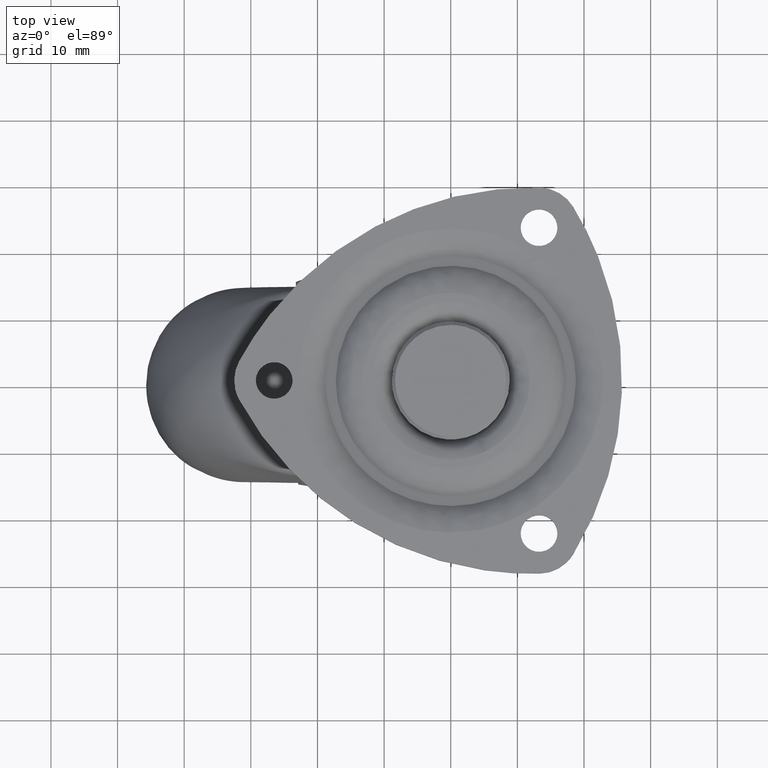
[diagram: clean part render]
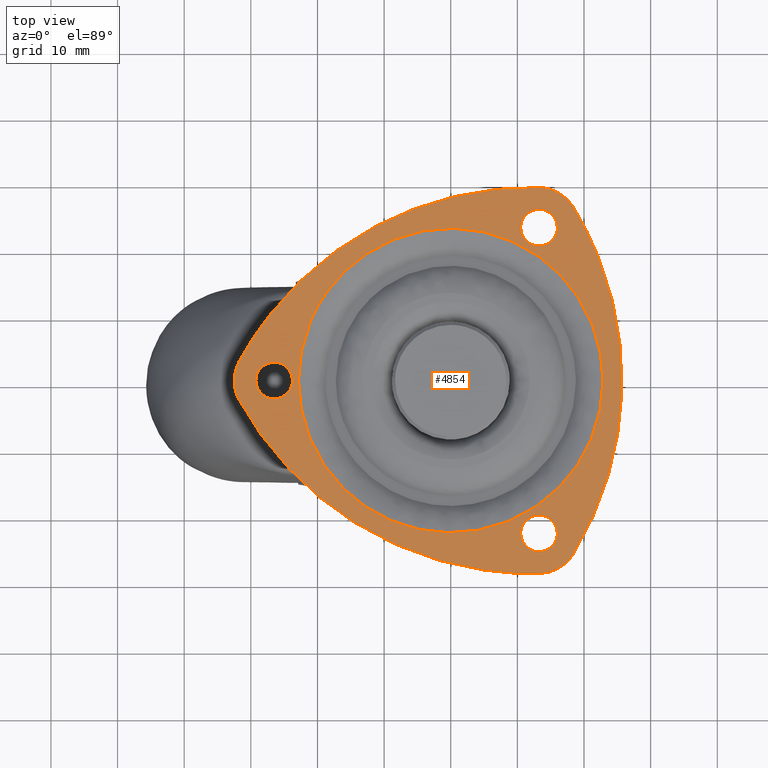
[diagram: same view with one face highlighted and labeled with its STEP entity id]
A machine part, top view. The second image highlights one B-rep face of the part: STEP entity #4854.
In plain terms, the highlighted face is a freeform B-spline surface patch.
Its self-contained STEP definition (entity closure, byte-faithful):
#3066=CARTESIAN_POINT('',(-26.824594145320749,-2.730776197498341,1.277743E-016));
#3067=VERTEX_POINT('',#3066);
#3068=CARTESIAN_POINT('',(-23.750000000000000,0.0,0.0));
#3069=VERTEX_POINT('',#3068);
#3070=CARTESIAN_POINT('',(-26.824594145320745,-2.730776197498340,1.277743E-016));
#3071=CARTESIAN_POINT('',(-26.662866329057564,-2.750000000000000,0.0));
#3072=CARTESIAN_POINT('',(-26.500000000000000,-2.750000000000000,0.0));
#3073=CARTESIAN_POINT('',(-23.750000000000011,-2.750000000000000,0.0));
#3074=CARTESIAN_POINT('',(-23.750000000000000,0.0,0.0));
#3082=(BOUNDED_CURVE()B_SPLINE_CURVE(2,(#3070,#3071,#3072,#3073,#3074),.UNSPECIFIED.,.F.,.U.)B_SPLINE_CURVE_WITH_KNOTS((3,2,3),(0.229562473513830,0.250000000000000,0.500000000000000),.UNSPECIFIED.)CURVE()GEOMETRIC_REPRESENTATION_ITEM()RATIONAL_B_SPLINE_CURVE((0.956026754184330,0.976055948331522,1.0,0.707106781186548,1.0))REPRESENTATION_ITEM(''));
#3083=EDGE_CURVE('',#3067,#3069,#3082,.T.);
#3085=CARTESIAN_POINT('',(-26.332116516199349,2.744870695655254,1.249001E-016));
#3086=VERTEX_POINT('',#3085);
#3087=CARTESIAN_POINT('',(-23.750000000000000,0.0,0.0));
#3088=CARTESIAN_POINT('',(-23.750000000000004,2.586941683839990,0.0));
#3089=CARTESIAN_POINT('',(-26.332116516199349,2.744870695655254,1.249001E-016));
#3097=(BOUNDED_CURVE()B_SPLINE_CURVE(2,(#3087,#3088,#3089),.UNSPECIFIED.,.F.,.U.)B_SPLINE_CURVE_WITH_KNOTS((3,3),(0.500000000000000,0.739332962231937),.UNSPECIFIED.)CURVE()GEOMETRIC_REPRESENTATION_ITEM()RATIONAL_B_SPLINE_CURVE((1.0,0.719603993294918,0.976072041651703))REPRESENTATION_ITEM(''));
#3098=EDGE_CURVE('',#3069,#3086,#3097,.T.);
#3165=CARTESIAN_POINT('',(-29.250000000000000,0.0,0.0));
#3166=VERTEX_POINT('',#3165);
#3167=CARTESIAN_POINT('',(-29.250000000000000,0.0,0.0));
#3168=CARTESIAN_POINT('',(-29.249999999999993,-2.442479946339859,0.0));
#3169=CARTESIAN_POINT('',(-26.824594145320745,-2.730776197498340,1.277743E-016));
#3177=(BOUNDED_CURVE()B_SPLINE_CURVE(2,(#3167,#3168,#3169),.UNSPECIFIED.,.F.,.U.)B_SPLINE_CURVE_WITH_KNOTS((3,3),(0.0,0.229562473513830),.UNSPECIFIED.)CURVE()GEOMETRIC_REPRESENTATION_ITEM()RATIONAL_B_SPLINE_CURVE((1.0,0.731050832855025,0.956026754184330))REPRESENTATION_ITEM(''));
#3178=EDGE_CURVE('',#3166,#3067,#3177,.T.);
#3212=CARTESIAN_POINT('',(-26.332116516199353,2.744870695655254,1.249001E-016));
#3213=CARTESIAN_POINT('',(-26.415979900848864,2.750000000000000,0.0));
#3214=CARTESIAN_POINT('',(-26.500000000000000,2.750000000000000,0.0));
#3215=CARTESIAN_POINT('',(-29.250000000000004,2.750000000000000,0.0));
#3216=CARTESIAN_POINT('',(-29.250000000000000,0.0,0.0));
#3224=(BOUNDED_CURVE()B_SPLINE_CURVE(2,(#3212,#3213,#3214,#3215,#3216),.UNSPECIFIED.,.F.,.U.)B_SPLINE_CURVE_WITH_KNOTS((3,2,3),(0.739332962231937,0.750000000000000,1.0),.UNSPECIFIED.)CURVE()GEOMETRIC_REPRESENTATION_ITEM()RATIONAL_B_SPLINE_CURVE((0.976072041651702,0.987502787891629,1.0,0.707106781186548,1.0))REPRESENTATION_ITEM(''));
#3225=EDGE_CURVE('',#3086,#3166,#3224,.T.);
#3252=CARTESIAN_POINT('',(12.925405854679260,20.218897802501662,1.277743E-016));
#3253=VERTEX_POINT('',#3252);
#3254=CARTESIAN_POINT('',(16.0,22.949674000000002,0.0));
#3255=VERTEX_POINT('',#3254);
#3256=CARTESIAN_POINT('',(12.925405854679255,20.218897802501662,1.277743E-016));
#3257=CARTESIAN_POINT('',(13.087133670942436,20.199674000000002,0.0));
#3258=CARTESIAN_POINT('',(13.250000000000000,20.199674000000002,0.0));
#3259=CARTESIAN_POINT('',(15.999999999999998,20.199674000000009,0.0));
#3260=CARTESIAN_POINT('',(16.0,22.949674000000002,0.0));
#3268=(BOUNDED_CURVE()B_SPLINE_CURVE(2,(#3256,#3257,#3258,#3259,#3260),.UNSPECIFIED.,.F.,.U.)B_SPLINE_CURVE_WITH_KNOTS((3,2,3),(0.229562473513830,0.250000000000000,0.500000000000000),.UNSPECIFIED.)CURVE()GEOMETRIC_REPRESENTATION_ITEM()RATIONAL_B_SPLINE_CURVE((0.956026754184330,0.976055948331522,1.0,0.707106781186548,1.0))REPRESENTATION_ITEM(''));
#3269=EDGE_CURVE('',#3253,#3255,#3268,.T.);
#3271=CARTESIAN_POINT('',(13.417883483800651,25.694544695655249,1.249001E-016));
#3272=VERTEX_POINT('',#3271);
#3273=CARTESIAN_POINT('',(16.0,22.949674000000002,0.0));
#3274=CARTESIAN_POINT('',(15.999999999999995,25.536615683839983,0.0));
#3275=CARTESIAN_POINT('',(13.417883483800647,25.694544695655253,1.249001E-016));
#3283=(BOUNDED_CURVE()B_SPLINE_CURVE(2,(#3273,#3274,#3275),.UNSPECIFIED.,.F.,.U.)B_SPLINE_CURVE_WITH_KNOTS((3,3),(0.500000000000000,0.739332962231937),.UNSPECIFIED.)CURVE()GEOMETRIC_REPRESENTATION_ITEM()RATIONAL_B_SPLINE_CURVE((1.0,0.719603993294918,0.976072041651703))REPRESENTATION_ITEM(''));
#3284=EDGE_CURVE('',#3255,#3272,#3283,.T.);
#3351=CARTESIAN_POINT('',(10.500000000000000,22.949674000000002,0.0));
#3352=VERTEX_POINT('',#3351);
#3353=CARTESIAN_POINT('',(10.500000000000000,22.949674000000002,0.0));
#3354=CARTESIAN_POINT('',(10.499999999999998,20.507194053660132,0.0));
#3355=CARTESIAN_POINT('',(12.925405854679251,20.218897802501658,1.277743E-016));
#3363=(BOUNDED_CURVE()B_SPLINE_CURVE(2,(#3353,#3354,#3355),.UNSPECIFIED.,.F.,.U.)B_SPLINE_CURVE_WITH_KNOTS((3,3),(0.0,0.229562473513830),.UNSPECIFIED.)CURVE()GEOMETRIC_REPRESENTATION_ITEM()RATIONAL_B_SPLINE_CURVE((1.0,0.731050832855026,0.956026754184330))REPRESENTATION_ITEM(''));
#3364=EDGE_CURVE('',#3352,#3253,#3363,.T.);
#3398=CARTESIAN_POINT('',(13.417883483800649,25.694544695655253,1.249001E-016));
#3399=CARTESIAN_POINT('',(13.334020099151134,25.699673999999998,0.0));
#3400=CARTESIAN_POINT('',(13.250000000000000,25.699674000000002,0.0));
#3401=CARTESIAN_POINT('',(10.499999999999998,25.699673999999991,0.0));
#3402=CARTESIAN_POINT('',(10.500000000000000,22.949674000000002,0.0));
#3410=(BOUNDED_CURVE()B_SPLINE_CURVE(2,(#3398,#3399,#3400,#3401,#3402),.UNSPECIFIED.,.F.,.U.)B_SPLINE_CURVE_WITH_KNOTS((3,2,3),(0.739332962231937,0.750000000000000,1.0),.UNSPECIFIED.)CURVE()GEOMETRIC_REPRESENTATION_ITEM()RATIONAL_B_SPLINE_CURVE((0.976072041651702,0.987502787891629,1.0,0.707106781186548,1.0))REPRESENTATION_ITEM(''));
#3411=EDGE_CURVE('',#3272,#3352,#3410,.T.);
#3438=CARTESIAN_POINT('',(12.925405854679260,-25.680449197498440,1.277743E-016));
#3439=VERTEX_POINT('',#3438);
#3440=CARTESIAN_POINT('',(16.0,-22.949673000000100,0.0));
#3441=VERTEX_POINT('',#3440);
#3442=CARTESIAN_POINT('',(12.925405854679260,-25.680449197498444,1.277743E-016));
#3443=CARTESIAN_POINT('',(13.087133670942434,-25.699673000000100,0.0));
#3444=CARTESIAN_POINT('',(13.250000000000000,-25.699673000000100,0.0));
#3445=CARTESIAN_POINT('',(15.999999999999998,-25.699673000000107,0.0));
#3446=CARTESIAN_POINT('',(16.0,-22.949673000000100,0.0));
#3454=(BOUNDED_CURVE()B_SPLINE_CURVE(2,(#3442,#3443,#3444,#3445,#3446),.UNSPECIFIED.,.F.,.U.)B_SPLINE_CURVE_WITH_KNOTS((3,2,3),(0.229562473513830,0.250000000000000,0.500000000000000),.UNSPECIFIED.)CURVE()GEOMETRIC_REPRESENTATION_ITEM()RATIONAL_B_SPLINE_CURVE((0.956026754184330,0.976055948331522,1.0,0.707106781186548,1.0))REPRESENTATION_ITEM(''));
#3455=EDGE_CURVE('',#3439,#3441,#3454,.T.);
#3457=CARTESIAN_POINT('',(13.417883483800651,-20.204802304344849,1.249001E-016));
#3458=VERTEX_POINT('',#3457);
#3459=CARTESIAN_POINT('',(16.0,-22.949673000000100,0.0));
#3460=CARTESIAN_POINT('',(15.999999999999995,-20.362731316160108,0.0));
#3461=CARTESIAN_POINT('',(13.417883483800647,-20.204802304344849,1.249001E-016));
#3469=(BOUNDED_CURVE()B_SPLINE_CURVE(2,(#3459,#3460,#3461),.UNSPECIFIED.,.F.,.U.)B_SPLINE_CURVE_WITH_KNOTS((3,3),(0.500000000000000,0.739332962231937),.UNSPECIFIED.)CURVE()GEOMETRIC_REPRESENTATION_ITEM()RATIONAL_B_SPLINE_CURVE((1.0,0.719603993294918,0.976072041651703))REPRESENTATION_ITEM(''));
#3470=EDGE_CURVE('',#3441,#3458,#3469,.T.);
#3537=CARTESIAN_POINT('',(10.500000000000000,-22.949673000000100,0.0));
#3538=VERTEX_POINT('',#3537);
#3539=CARTESIAN_POINT('',(10.500000000000000,-22.949673000000100,0.0));
#3540=CARTESIAN_POINT('',(10.500000000000000,-25.392152946339962,0.0));
#3541=CARTESIAN_POINT('',(12.925405854679260,-25.680449197498440,1.277743E-016));
#3549=(BOUNDED_CURVE()B_SPLINE_CURVE(2,(#3539,#3540,#3541),.UNSPECIFIED.,.F.,.U.)B_SPLINE_CURVE_WITH_KNOTS((3,3),(0.0,0.229562473513830),.UNSPECIFIED.)CURVE()GEOMETRIC_REPRESENTATION_ITEM()RATIONAL_B_SPLINE_CURVE((1.0,0.731050832855025,0.956026754184330))REPRESENTATION_ITEM(''));
#3550=EDGE_CURVE('',#3538,#3439,#3549,.T.);
#3584=CARTESIAN_POINT('',(13.417883483800649,-20.204802304344849,1.249001E-016));
#3585=CARTESIAN_POINT('',(13.334020099151134,-20.199673000000107,0.0));
#3586=CARTESIAN_POINT('',(13.250000000000000,-20.199673000000100,0.0));
#3587=CARTESIAN_POINT('',(10.499999999999998,-20.199673000000111,0.0));
#3588=CARTESIAN_POINT('',(10.500000000000000,-22.949673000000100,0.0));
#3596=(BOUNDED_CURVE()B_SPLINE_CURVE(2,(#3584,#3585,#3586,#3587,#3588),.UNSPECIFIED.,.F.,.U.)B_SPLINE_CURVE_WITH_KNOTS((3,2,3),(0.739332962231937,0.750000000000000,1.0),.UNSPECIFIED.)CURVE()GEOMETRIC_REPRESENTATION_ITEM()RATIONAL_B_SPLINE_CURVE((0.976072041651702,0.987502787891629,1.0,0.707106781186548,1.0))REPRESENTATION_ITEM(''));
#3597=EDGE_CURVE('',#3458,#3538,#3596,.T.);
#3836=CARTESIAN_POINT('',(-18.653898074790721,13.197922715357709,-1.032646E-015));
#3837=VERTEX_POINT('',#3836);
#3851=CARTESIAN_POINT('',(-22.850669080457550,0.0,0.0));
#3852=VERTEX_POINT('',#3851);
#3853=CARTESIAN_POINT('',(-22.850669080457550,0.0,0.0));
#3854=CARTESIAN_POINT('',(-22.850669080457550,7.266221170253561,0.0));
#3855=CARTESIAN_POINT('',(-18.653898074790714,13.197922715357700,-1.032646E-015));
#3863=(BOUNDED_CURVE()B_SPLINE_CURVE(2,(#3853,#3854,#3855),.UNSPECIFIED.,.F.,.U.)B_SPLINE_CURVE_WITH_KNOTS((3,3),(0.0,0.099340826589061),.UNSPECIFIED.)CURVE()GEOMETRIC_REPRESENTATION_ITEM()RATIONAL_B_SPLINE_CURVE((1.0,0.883614982162964,0.859724235322038))REPRESENTATION_ITEM(''));
#3864=EDGE_CURVE('',#3852,#3837,#3863,.T.);
#3866=CARTESIAN_POINT('',(22.850669080457550,0.0,0.0));
#3867=VERTEX_POINT('',#3866);
#3868=CARTESIAN_POINT('',(22.850669080457550,0.0,0.0));
#3869=CARTESIAN_POINT('',(22.850669080457546,-22.850669080457546,0.0));
#3870=CARTESIAN_POINT('',(0.0,-22.850669080457550,0.0));
#3871=CARTESIAN_POINT('',(-22.850669080457546,-22.850669080457546,0.0));
#3872=CARTESIAN_POINT('',(-22.850669080457550,0.0,0.0));
#3880=(BOUNDED_CURVE()B_SPLINE_CURVE(2,(#3868,#3869,#3870,#3871,#3872),.UNSPECIFIED.,.F.,.U.)B_SPLINE_CURVE_WITH_KNOTS((3,2,3),(0.500000000000000,0.750000000000000,1.0),.UNSPECIFIED.)CURVE()GEOMETRIC_REPRESENTATION_ITEM()RATIONAL_B_SPLINE_CURVE((1.0,0.707106781186547,1.0,0.707106781186547,1.0))REPRESENTATION_ITEM(''));
#3881=EDGE_CURVE('',#3867,#3852,#3880,.T.);
#3883=CARTESIAN_POINT('',(13.197922715357709,18.653898074790710,-1.032646E-015));
#3884=VERTEX_POINT('',#3883);
#3885=CARTESIAN_POINT('',(13.197922715357713,18.653898074790717,-1.032646E-015));
#3886=CARTESIAN_POINT('',(22.850669080457543,11.824430046833628,0.0));
#3887=CARTESIAN_POINT('',(22.850669080457550,0.0,0.0));
#3895=(BOUNDED_CURVE()B_SPLINE_CURVE(2,(#3885,#3886,#3887),.UNSPECIFIED.,.F.,.U.)B_SPLINE_CURVE_WITH_KNOTS((3,3),(0.349340826589061,0.500000000000000),.UNSPECIFIED.)CURVE()GEOMETRIC_REPRESENTATION_ITEM()RATIONAL_B_SPLINE_CURVE((0.859724235322038,0.823491799023584,1.0))REPRESENTATION_ITEM(''));
#3896=EDGE_CURVE('',#3884,#3867,#3895,.T.);
#3947=CARTESIAN_POINT('',(-18.653898074790717,13.197922715357702,-1.032646E-015));
#3948=CARTESIAN_POINT('',(-11.824430046833632,22.850669080457543,0.0));
#3949=CARTESIAN_POINT('',(0.0,22.850669080457550,0.0));
#3950=CARTESIAN_POINT('',(7.266221170253582,22.850669080457546,0.0));
#3951=CARTESIAN_POINT('',(13.197922715357713,18.653898074790717,-1.032646E-015));
#3959=(BOUNDED_CURVE()B_SPLINE_CURVE(2,(#3947,#3948,#3949,#3950,#3951),.UNSPECIFIED.,.F.,.U.)B_SPLINE_CURVE_WITH_KNOTS((3,2,3),(0.099340826589061,0.250000000000000,0.349340826589061),.UNSPECIFIED.)CURVE()GEOMETRIC_REPRESENTATION_ITEM()RATIONAL_B_SPLINE_CURVE((0.859724235322038,0.823491799023584,1.0,0.883614982162963,0.859724235322038))REPRESENTATION_ITEM(''));
#3960=EDGE_CURVE('',#3837,#3884,#3959,.T.);
#4733=CARTESIAN_POINT('',(-35.407548841360899,31.853379514801791,0.0));
#4734=CARTESIAN_POINT('',(28.616739386169861,31.853379514801791,0.0));
#4735=CARTESIAN_POINT('',(-35.407548841360899,-31.853376444295250,0.0));
#4736=CARTESIAN_POINT('',(28.616739386169861,-31.853376444295250,0.0));
#4737=B_SPLINE_SURFACE_WITH_KNOTS('',1,1,((#4733,#4735),(#4734,#4736)),.UNSPECIFIED.,.F.,.F.,.U.,(2,2),(2,2),(0.0,64.024288227530761),(0.0,63.706755959097052),.UNSPECIFIED.);
#4738=CARTESIAN_POINT('',(18.369201818529849,26.079173804453351,0.0));
#4739=VERTEX_POINT('',#4738);
#4740=CARTESIAN_POINT('',(13.400626615101521,28.947782728843048,0.0));
#4741=VERTEX_POINT('',#4740);
#4742=CARTESIAN_POINT('',(18.369201818529849,26.079173804453351,0.0));
#4743=CARTESIAN_POINT('',(16.665671970180849,28.865790037092776,0.0));
#4744=CARTESIAN_POINT('',(13.400626615101521,28.947782728843048,0.0));
#4752=(BOUNDED_CURVE()B_SPLINE_CURVE(2,(#4742,#4743,#4744),.UNSPECIFIED.,.F.,.U.)CURVE()GEOMETRIC_REPRESENTATION_ITEM()QUASI_UNIFORM_CURVE()RATIONAL_B_SPLINE_CURVE((1.0,0.878304632990336,1.0))REPRESENTATION_ITEM(''));
#4753=EDGE_CURVE('',#4739,#4741,#4752,.T.);
#4754=ORIENTED_EDGE('',*,*,#4753,.T.);
#4755=CARTESIAN_POINT('',(-31.769827433630951,2.868608924389780,0.0));
#4756=VERTEX_POINT('',#4755);
#4757=CARTESIAN_POINT('',(13.400626615101530,28.947782728843048,0.0));
#4758=CARTESIAN_POINT('',(-17.156038547551749,29.715131691521837,0.0));
#4759=CARTESIAN_POINT('',(-31.769827433630951,2.868608924389775,0.0));
#4767=(BOUNDED_CURVE()B_SPLINE_CURVE(2,(#4757,#4758,#4759),.UNSPECIFIED.,.F.,.U.)CURVE()GEOMETRIC_REPRESENTATION_ITEM()QUASI_UNIFORM_CURVE()RATIONAL_B_SPLINE_CURVE((1.0,0.853200256370594,1.0))REPRESENTATION_ITEM(''));
#4768=EDGE_CURVE('',#4741,#4756,#4767,.T.);
#4769=ORIENTED_EDGE('',*,*,#4768,.T.);
#4770=CARTESIAN_POINT('',(-31.769828012035550,-2.868608150926780,0.0));
#4771=VERTEX_POINT('',#4770);
#4772=CARTESIAN_POINT('',(-31.769827433630951,2.868608924389780,0.0));
#4773=CARTESIAN_POINT('',(-33.331342783626887,0.000000544157564,0.0));
#4774=CARTESIAN_POINT('',(-31.769828012035550,-2.868608150926780,0.0));
#4782=(BOUNDED_CURVE()B_SPLINE_CURVE(2,(#4772,#4773,#4774),.UNSPECIFIED.,.F.,.U.)CURVE()GEOMETRIC_REPRESENTATION_ITEM()QUASI_UNIFORM_CURVE()RATIONAL_B_SPLINE_CURVE((1.0,0.878304630588961,1.0))REPRESENTATION_ITEM(''));
#4783=EDGE_CURVE('',#4756,#4771,#4782,.T.);
#4784=ORIENTED_EDGE('',*,*,#4783,.T.);
#4785=CARTESIAN_POINT('',(13.400626615101540,-28.947781728843250,0.0));
#4786=VERTEX_POINT('',#4785);
#4787=CARTESIAN_POINT('',(-31.769828012035550,-2.868608150926780,0.0));
#4788=CARTESIAN_POINT('',(-17.156038600813027,-29.715130692859464,0.0));
#4789=CARTESIAN_POINT('',(13.400626615101521,-28.947781728843150,0.0));
#4797=(BOUNDED_CURVE()B_SPLINE_CURVE(2,(#4787,#4788,#4789),.UNSPECIFIED.,.F.,.U.)CURVE()GEOMETRIC_REPRESENTATION_ITEM()QUASI_UNIFORM_CURVE()RATIONAL_B_SPLINE_CURVE((1.0,0.853200255966014,1.0))REPRESENTATION_ITEM(''));
#4798=EDGE_CURVE('',#4771,#4786,#4797,.T.);
#4799=ORIENTED_EDGE('',*,*,#4798,.T.);
#4800=CARTESIAN_POINT('',(18.369201538223550,-26.079173856534499,0.0));
#4801=VERTEX_POINT('',#4800);
#4802=CARTESIAN_POINT('',(13.400626615101540,-28.947781728843250,0.0));
#4803=CARTESIAN_POINT('',(16.665671293823422,-28.865789054077798,0.0));
#4804=CARTESIAN_POINT('',(18.369201538223560,-26.079173856534499,0.0));
#4812=(BOUNDED_CURVE()B_SPLINE_CURVE(2,(#4802,#4803,#4804),.UNSPECIFIED.,.F.,.U.)CURVE()GEOMETRIC_REPRESENTATION_ITEM()QUASI_UNIFORM_CURVE()RATIONAL_B_SPLINE_CURVE((1.0,0.878304674578743,1.0))REPRESENTATION_ITEM(''));
#4813=EDGE_CURVE('',#4786,#4801,#4812,.T.);
#4814=ORIENTED_EDGE('',*,*,#4813,.T.);
#4815=CARTESIAN_POINT('',(18.369201538223550,-26.079173856534499,0.0));
#4816=CARTESIAN_POINT('',(34.312078163401253,-0.000000111719852,0.0));
#4817=CARTESIAN_POINT('',(18.369201818529859,26.079173804453340,0.0));
#4825=(BOUNDED_CURVE()B_SPLINE_CURVE(2,(#4815,#4816,#4817),.UNSPECIFIED.,.F.,.U.)CURVE()GEOMETRIC_REPRESENTATION_ITEM()QUASI_UNIFORM_CURVE()RATIONAL_B_SPLINE_CURVE((1.0,0.853200255376253,1.0))REPRESENTATION_ITEM(''));
#4826=EDGE_CURVE('',#4801,#4739,#4825,.T.);
#4827=ORIENTED_EDGE('',*,*,#4826,.T.);
#4828=EDGE_LOOP('',(#4754,#4769,#4784,#4799,#4814,#4827));
#4829=FACE_OUTER_BOUND('',#4828,.T.);
#4830=ORIENTED_EDGE('',*,*,#3881,.T.);
#4831=ORIENTED_EDGE('',*,*,#3864,.T.);
#4832=ORIENTED_EDGE('',*,*,#3960,.T.);
#4833=ORIENTED_EDGE('',*,*,#3896,.T.);
#4834=EDGE_LOOP('',(#4830,#4831,#4832,#4833));
#4835=FACE_BOUND('',#4834,.T.);
#4836=ORIENTED_EDGE('',*,*,#3470,.F.);
#4837=ORIENTED_EDGE('',*,*,#3455,.F.);
#4838=ORIENTED_EDGE('',*,*,#3550,.F.);
#4839=ORIENTED_EDGE('',*,*,#3597,.F.);
#4840=EDGE_LOOP('',(#4836,#4837,#4838,#4839));
#4841=FACE_BOUND('',#4840,.T.);
#4842=ORIENTED_EDGE('',*,*,#3284,.F.);
#4843=ORIENTED_EDGE('',*,*,#3269,.F.);
#4844=ORIENTED_EDGE('',*,*,#3364,.F.);
#4845=ORIENTED_EDGE('',*,*,#3411,.F.);
#4846=EDGE_LOOP('',(#4842,#4843,#4844,#4845));
#4847=FACE_BOUND('',#4846,.T.);
#4848=ORIENTED_EDGE('',*,*,#3098,.F.);
#4849=ORIENTED_EDGE('',*,*,#3083,.F.);
#4850=ORIENTED_EDGE('',*,*,#3178,.F.);
#4851=ORIENTED_EDGE('',*,*,#3225,.F.);
#4852=EDGE_LOOP('',(#4848,#4849,#4850,#4851));
#4853=FACE_BOUND('',#4852,.T.);
#4854=ADVANCED_FACE('',(#4829,#4835,#4841,#4847,#4853),#4737,.F.);